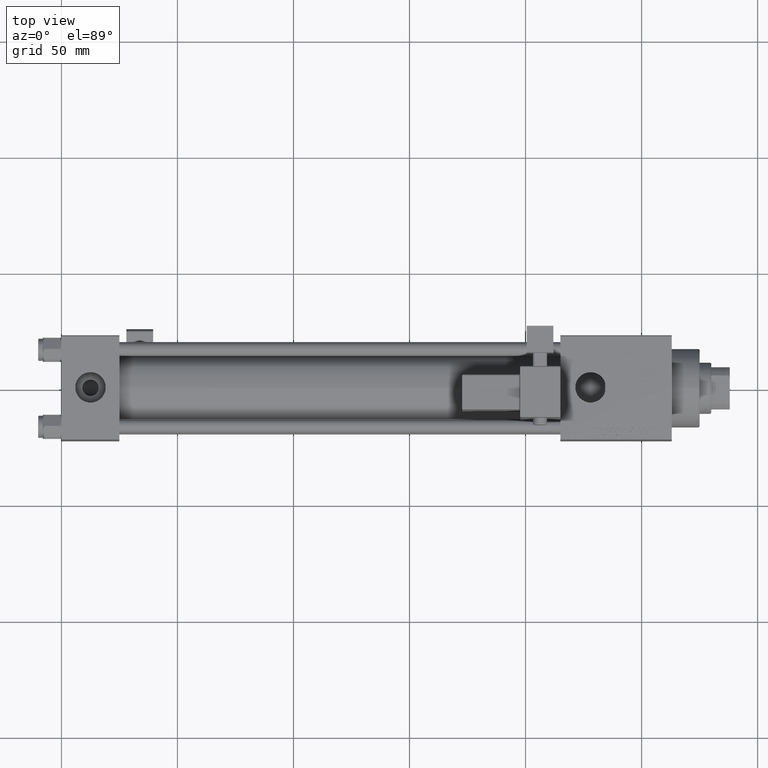
[diagram: clean part render]
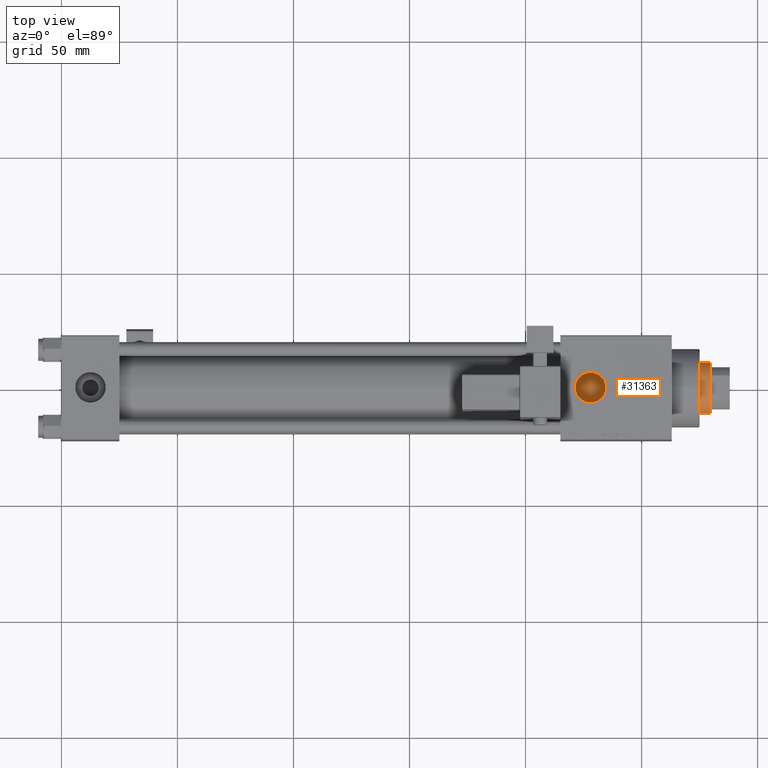
[diagram: same view with one face highlighted and labeled with its STEP entity id]
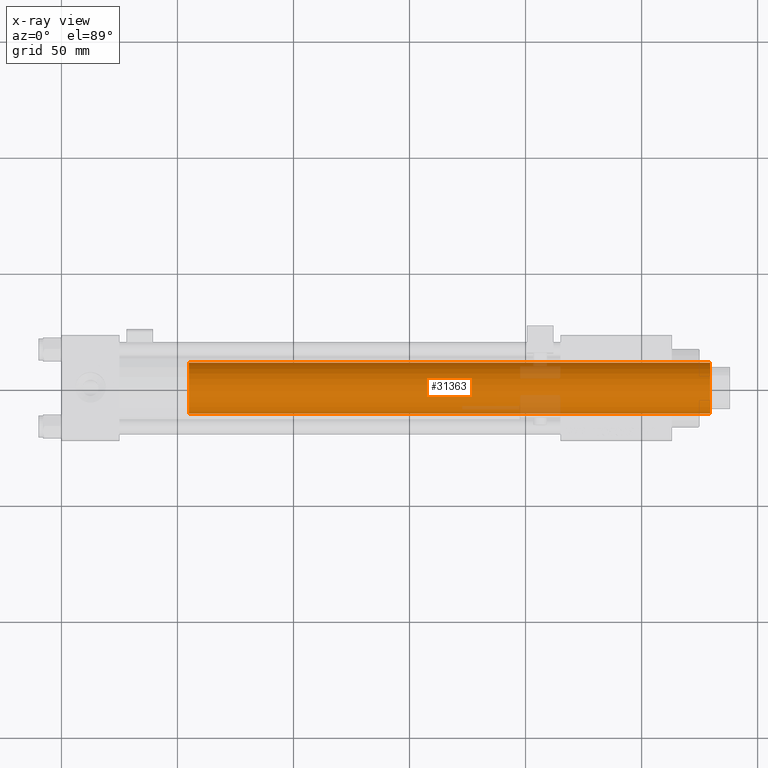
[diagram: x-ray of the same camera — body ghosted, the highlighted face saturated]
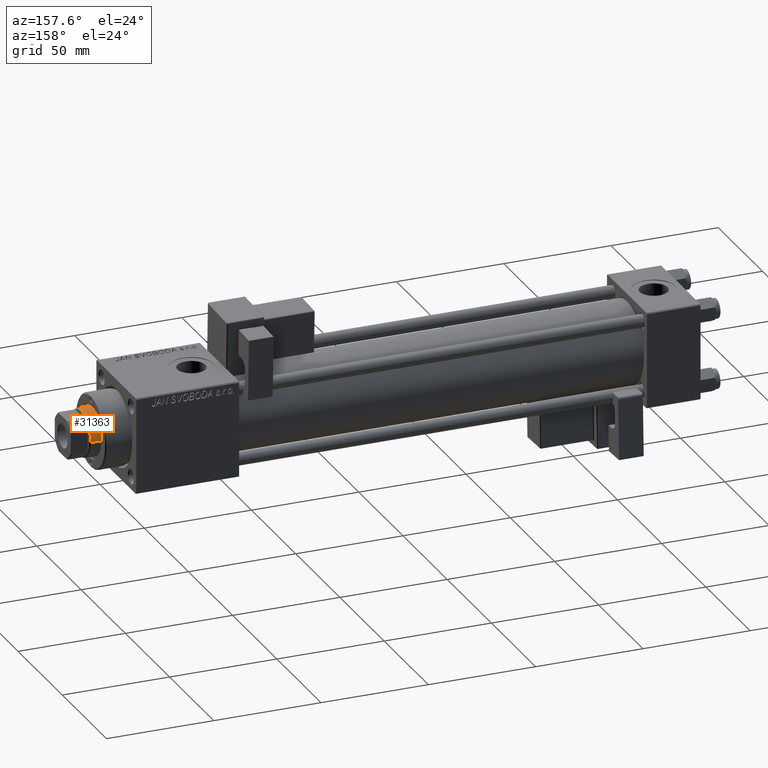
[diagram: same view with one face highlighted and labeled with its STEP entity id]
A machine part, top view. The second image highlights one B-rep face of the part: STEP entity #31363.
The next image is the same camera in x-ray: the body ghosted, the highlighted face saturated — about 6% of this face is hidden behind the body in this view.
A second angle (auxiliary view) of the same face is appended — the face is thin or edge-on in the first view.
In plain terms, the highlighted cylindrical surface (edge-blend (fillet) strip) has radius 11 mm, axis along (-1, 0, 0).
Its self-contained STEP definition (entity closure, byte-faithful):
#283 = DIRECTION ( 'NONE',  ( -1.000000000000000000, 0.000000000000000000, 0.000000000000000000 ) ) ;
#2112 = ORIENTED_EDGE ( 'NONE', *, *, #11331, .T. ) ;
#2619 = LINE ( 'NONE', #19198, #24164 ) ;
#5013 = EDGE_CURVE ( 'NONE', #44714, #36549, #31088, .T. ) ;
#6154 = CARTESIAN_POINT ( 'NONE',  ( 0.000000000000000000, 0.000000000000000000, 30.00000000000000000 ) ) ;
#8796 = ORIENTED_EDGE ( 'NONE', *, *, #34973, .T. ) ;
#9160 = DIRECTION ( 'NONE',  ( 0.000000000000000000, 0.000000000000000000, 1.000000000000000000 ) ) ;
#10422 = DIRECTION ( 'NONE',  ( -0.000000000000000000, -0.000000000000000000, -1.000000000000000000 ) ) ;
#10593 = ORIENTED_EDGE ( 'NONE', *, *, #5013, .F. ) ;
#11331 = EDGE_CURVE ( 'NONE', #26107, #11520, #2619, .T. ) ;
#11520 = VERTEX_POINT ( 'NONE', #43334 ) ;
#11581 = DIRECTION ( 'NONE',  ( -0.000000000000000000, -0.000000000000000000, -1.000000000000000000 ) ) ;
#15679 = CARTESIAN_POINT ( 'NONE',  ( 0.000000000000000000, 0.000000000000000000, 254.4999999999999432 ) ) ;
#16864 = CARTESIAN_POINT ( 'NONE',  ( 0.000000000000000000, 0.000000000000000000, 255.0000000000000000 ) ) ;
#17362 = CARTESIAN_POINT ( 'NONE',  ( 11.00000000000000000, 1.347111479062088405E-15, 254.4999999999999432 ) ) ;
#17456 = AXIS2_PLACEMENT_3D ( 'NONE', #16864, #29651, #283 ) ;
#19198 = CARTESIAN_POINT ( 'NONE',  ( -11.00000000000000000, 0.000000000000000000, 255.0000000000000000 ) ) ;
#20936 = FACE_OUTER_BOUND ( 'NONE', #45955, .T. ) ;
#21055 = AXIS2_PLACEMENT_3D ( 'NONE', #15679, #32268, #48840 ) ;
#24164 = VECTOR ( 'NONE', #11581, 1000.000000000000000 ) ;
#24933 = VECTOR ( 'NONE', #10422, 1000.000000000000000 ) ;
#25368 = CARTESIAN_POINT ( 'NONE',  ( 11.00000000000000000, 1.347111479062088405E-15, 30.00000000000000000 ) ) ;
#26107 = VERTEX_POINT ( 'NONE', #40626 ) ;
#27441 = EDGE_CURVE ( 'NONE', #11520, #36549, #34243, .T. ) ;
#29385 = CYLINDRICAL_SURFACE ( 'NONE', #17456, 11.00000000000000000 ) ;
#29651 = DIRECTION ( 'NONE',  ( -0.000000000000000000, -0.000000000000000000, -1.000000000000000000 ) ) ;
#31088 = LINE ( 'NONE', #47665, #24933 ) ;
#31363 = ADVANCED_FACE ( 'NONE', ( #20936 ), #29385, .T. ) ;
#32210 = ORIENTED_EDGE ( 'NONE', *, *, #27441, .T. ) ;
#32268 = DIRECTION ( 'NONE',  ( 0.000000000000000000, 0.000000000000000000, -1.000000000000000000 ) ) ;
#34243 = CIRCLE ( 'NONE', #39447, 11.00000000000000000 ) ;
#34973 = EDGE_CURVE ( 'NONE', #44714, #26107, #51457, .T. ) ;
#36549 = VERTEX_POINT ( 'NONE', #25368 ) ;
#39447 = AXIS2_PLACEMENT_3D ( 'NONE', #6154, #9160, #47205 ) ;
#40626 = CARTESIAN_POINT ( 'NONE',  ( -11.00000000000000000, 0.000000000000000000, 254.4999999999999432 ) ) ;
#43334 = CARTESIAN_POINT ( 'NONE',  ( -11.00000000000000000, 0.000000000000000000, 30.00000000000000000 ) ) ;
#44714 = VERTEX_POINT ( 'NONE', #17362 ) ;
#45955 = EDGE_LOOP ( 'NONE', ( #10593, #8796, #2112, #32210 ) ) ;
#47205 = DIRECTION ( 'NONE',  ( 1.000000000000000000, 0.000000000000000000, 0.000000000000000000 ) ) ;
#47665 = CARTESIAN_POINT ( 'NONE',  ( 11.00000000000000000, 1.347111479062088405E-15, 255.0000000000000000 ) ) ;
#48840 = DIRECTION ( 'NONE',  ( 1.000000000000000000, 0.000000000000000000, 0.000000000000000000 ) ) ;
#51457 = CIRCLE ( 'NONE', #21055, 11.00000000000000000 ) ;